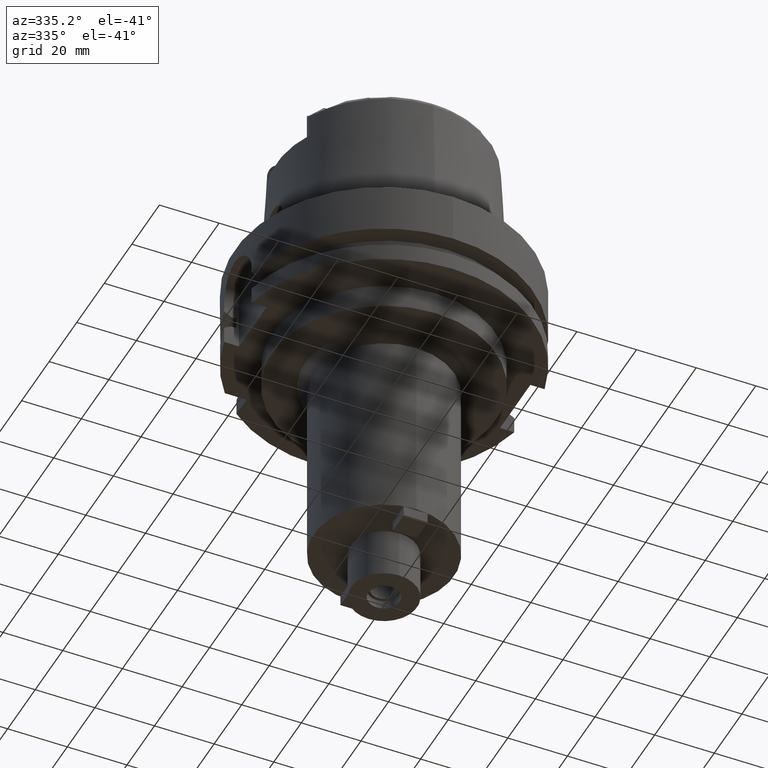
[diagram: clean part render]
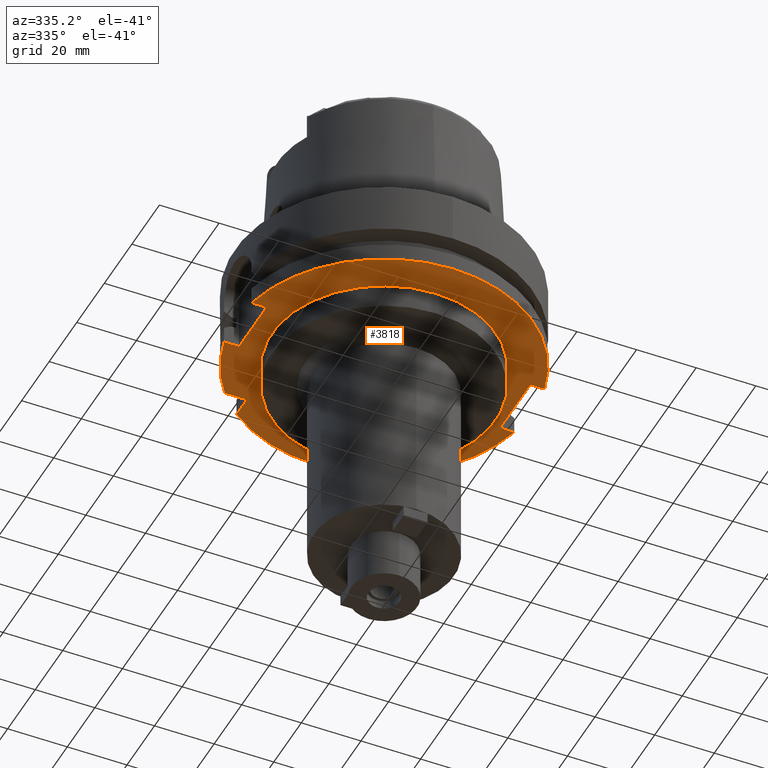
[diagram: same view with one face highlighted and labeled with its STEP entity id]
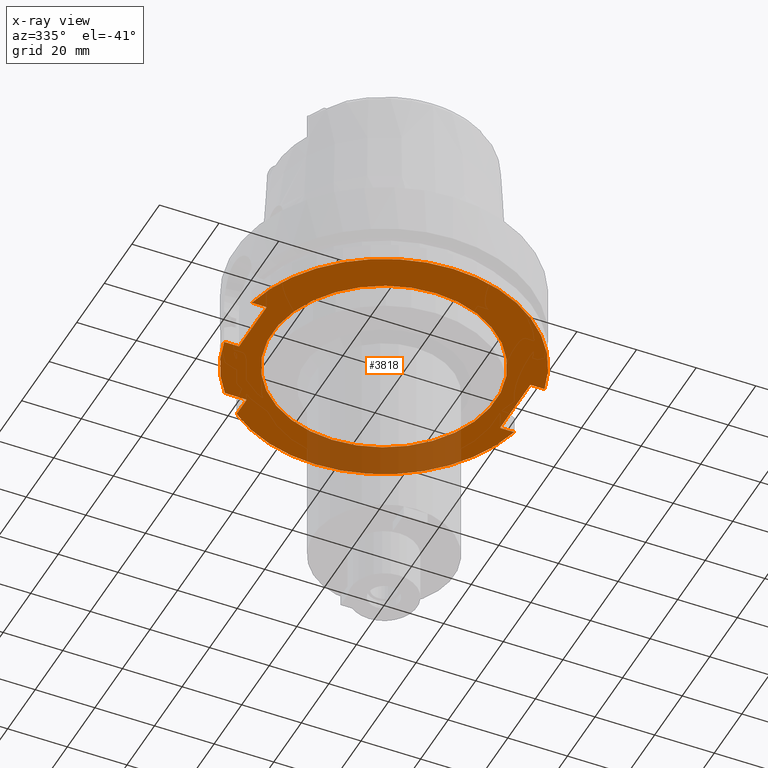
[diagram: x-ray of the same camera — body ghosted, the highlighted face saturated]
A machine part, auxiliary view. The second image highlights one B-rep face of the part: STEP entity #3818.
The next image is the same camera in x-ray: the body ghosted, the highlighted face saturated — about 20% of this face is hidden behind the body in this view.
In plain terms, the highlighted planar face has unit normal (0, 0, 1).
Its self-contained STEP definition (entity closure, byte-faithful):
#1289=DIRECTION('',(-1.E0,-4.798503851106E-14,0.E0));
#1290=VECTOR('',#1289,7.329756630709E0);
#1291=CARTESIAN_POINT('',(-3.15E1,3.15E1,-2.9E1));
#1292=LINE('',#1291,#1290);
#1296=CARTESIAN_POINT('',(0.E0,0.E0,-2.9E1));
#1297=DIRECTION('',(0.E0,0.E0,1.E0));
#1298=DIRECTION('',(-7.765951326142E-1,6.3E-1,0.E0));
#1299=AXIS2_PLACEMENT_3D('',#1296,#1297,#1298);
#1304=DIRECTION('',(-1.E0,-4.627973610177E-14,0.E0));
#1305=VECTOR('',#1304,4.989794855662E0);
#1306=CARTESIAN_POINT('',(-4.4E1,-1.E1,-2.9E1));
#1307=LINE('',#1306,#1305);
#1311=CARTESIAN_POINT('',(0.E0,0.E0,-2.9E1));
#1312=DIRECTION('',(0.E0,0.E0,1.E0));
#1313=DIRECTION('',(-9.797958971133E-1,-2.E-1,0.E0));
#1314=AXIS2_PLACEMENT_3D('',#1311,#1312,#1313);
#1319=CARTESIAN_POINT('',(0.E0,0.E0,-2.9E1));
#1320=DIRECTION('',(0.E0,0.E0,1.E0));
#1321=DIRECTION('',(0.E0,-1.E0,0.E0));
#1322=AXIS2_PLACEMENT_3D('',#1319,#1320,#1321);
#1327=DIRECTION('',(1.E0,-1.785659532940E-14,0.E0));
#1328=VECTOR('',#1327,4.774993593029E0);
#1329=CARTESIAN_POINT('',(4.4E1,1.1E1,-2.9E1));
#1330=LINE('',#1329,#1328);
#1334=CARTESIAN_POINT('',(0.E0,0.E0,-2.9E1));
#1335=DIRECTION('',(0.E0,0.E0,1.E0));
#1336=DIRECTION('',(9.754998718606E-1,2.2E-1,0.E0));
#1337=AXIS2_PLACEMENT_3D('',#1334,#1335,#1336);
#1342=CARTESIAN_POINT('',(0.E0,0.E0,-2.9E1));
#1343=DIRECTION('',(0.E0,0.E0,1.E0));
#1344=DIRECTION('',(0.E0,1.E0,0.E0));
#1345=AXIS2_PLACEMENT_3D('',#1342,#1343,#1344);
#1350=CARTESIAN_POINT('',(0.E0,0.E0,-2.9E1));
#1351=DIRECTION('',(0.E0,0.E0,-1.E0));
#1352=DIRECTION('',(0.E0,-1.E0,0.E0));
#1353=AXIS2_PLACEMENT_3D('',#1350,#1351,#1352);
#1358=CARTESIAN_POINT('',(0.E0,0.E0,-2.9E1));
#1359=DIRECTION('',(0.E0,0.E0,-1.E0));
#1360=DIRECTION('',(0.E0,1.E0,0.E0));
#1361=AXIS2_PLACEMENT_3D('',#1358,#1359,#1360);
#1366=DIRECTION('',(4.798503851106E-14,1.E0,0.E0));
#1367=VECTOR('',#1366,7.329756630709E0);
#1368=CARTESIAN_POINT('',(-3.15E1,3.15E1,-2.9E1));
#1369=LINE('',#1368,#1367);
#1419=DIRECTION('',(0.E0,-1.E0,0.E0));
#1420=VECTOR('',#1419,2.2E1);
#1421=CARTESIAN_POINT('',(4.4E1,1.1E1,-2.9E1));
#1422=LINE('',#1421,#1420);
#1463=DIRECTION('',(1.E0,1.711257052401E-14,0.E0));
#1464=VECTOR('',#1463,4.774993593029E0);
#1465=CARTESIAN_POINT('',(4.4E1,-1.1E1,-2.9E1));
#1466=LINE('',#1465,#1464);
#1505=DIRECTION('',(0.E0,1.E0,0.E0));
#1506=VECTOR('',#1505,2.E1);
#1507=CARTESIAN_POINT('',(-4.4E1,-1.E1,-2.9E1));
#1508=LINE('',#1507,#1506);
#1528=DIRECTION('',(-1.E0,4.627973610177E-14,0.E0));
#1529=VECTOR('',#1528,4.989794855662E0);
#1530=CARTESIAN_POINT('',(-4.4E1,1.E1,-2.9E1));
#1531=LINE('',#1530,#1529);
#2654=CARTESIAN_POINT('',(0.E0,3.75E1,-2.9E1));
#2655=VERTEX_POINT('',#2654);
#2656=CARTESIAN_POINT('',(0.E0,-3.75E1,-2.9E1));
#2657=VERTEX_POINT('',#2656);
#2658=CARTESIAN_POINT('',(-3.15E1,3.15E1,-2.9E1));
#2659=CARTESIAN_POINT('',(-3.15E1,3.882975663071E1,-2.9E1));
#2660=VERTEX_POINT('',#2658);
#2661=VERTEX_POINT('',#2659);
#2662=CARTESIAN_POINT('',(-3.882975663071E1,3.15E1,-2.9E1));
#2663=VERTEX_POINT('',#2662);
#2664=CARTESIAN_POINT('',(-4.898979485566E1,1.E1,-2.9E1));
#2665=VERTEX_POINT('',#2664);
#2666=CARTESIAN_POINT('',(-4.4E1,1.E1,-2.9E1));
#2667=VERTEX_POINT('',#2666);
#2668=CARTESIAN_POINT('',(-4.4E1,-1.E1,-2.9E1));
#2669=VERTEX_POINT('',#2668);
#2670=CARTESIAN_POINT('',(-4.898979485566E1,-1.E1,-2.9E1));
#2671=VERTEX_POINT('',#2670);
#2672=CARTESIAN_POINT('',(-6.821749291192E-14,-5.E1,-2.9E1));
#2673=CARTESIAN_POINT('',(4.877499359303E1,-1.1E1,-2.9E1));
#2674=VERTEX_POINT('',#2672);
#2675=VERTEX_POINT('',#2673);
#2676=CARTESIAN_POINT('',(4.4E1,-1.1E1,-2.9E1));
#2677=VERTEX_POINT('',#2676);
#2678=CARTESIAN_POINT('',(4.4E1,1.1E1,-2.9E1));
#2679=VERTEX_POINT('',#2678);
#2680=CARTESIAN_POINT('',(4.877499359303E1,1.1E1,-2.9E1));
#2681=VERTEX_POINT('',#2680);
#2682=CARTESIAN_POINT('',(-6.019535474874E-14,5.E1,-2.9E1));
#2683=VERTEX_POINT('',#2682);
#3781=CARTESIAN_POINT('',(0.E0,0.E0,-2.9E1));
#3782=DIRECTION('',(0.E0,0.E0,1.E0));
#3783=DIRECTION('',(0.E0,1.E0,0.E0));
#3784=AXIS2_PLACEMENT_3D('',#3781,#3782,#3783);
#3785=PLANE('',#3784);
#3787=ORIENTED_EDGE('',*,*,#3786,.F.);
#3789=ORIENTED_EDGE('',*,*,#3788,.T.);
#3791=ORIENTED_EDGE('',*,*,#3790,.T.);
#3793=ORIENTED_EDGE('',*,*,#3792,.F.);
#3795=ORIENTED_EDGE('',*,*,#3794,.F.);
#3797=ORIENTED_EDGE('',*,*,#3796,.T.);
#3799=ORIENTED_EDGE('',*,*,#3798,.T.);
#3801=ORIENTED_EDGE('',*,*,#3800,.T.);
#3803=ORIENTED_EDGE('',*,*,#3802,.F.);
#3805=ORIENTED_EDGE('',*,*,#3804,.F.);
#3807=ORIENTED_EDGE('',*,*,#3806,.T.);
#3809=ORIENTED_EDGE('',*,*,#3808,.T.);
#3811=ORIENTED_EDGE('',*,*,#3810,.T.);
#3812=EDGE_LOOP('',(#3787,#3789,#3791,#3793,#3795,#3797,#3799,#3801,#3803,#3805,
#3807,#3809,#3811));
#3813=FACE_OUTER_BOUND('',#3812,.F.);
#3814=ORIENTED_EDGE('',*,*,#3774,.T.);
#3815=ORIENTED_EDGE('',*,*,#3763,.T.);
#3816=EDGE_LOOP('',(#3814,#3815));
#3817=FACE_BOUND('',#3816,.F.);
#1300=CIRCLE('',#1299,5.E1);
#1315=CIRCLE('',#1314,5.E1);
#1323=CIRCLE('',#1322,5.E1);
#1338=CIRCLE('',#1337,5.E1);
#1346=CIRCLE('',#1345,5.E1);
#1354=CIRCLE('',#1353,3.75E1);
#1362=CIRCLE('',#1361,3.75E1);
#3763=EDGE_CURVE('',#2655,#2657,#1362,.T.);
#3774=EDGE_CURVE('',#2657,#2655,#1354,.T.);
#3786=EDGE_CURVE('',#2660,#2661,#1369,.T.);
#3788=EDGE_CURVE('',#2660,#2663,#1292,.T.);
#3790=EDGE_CURVE('',#2663,#2665,#1300,.T.);
#3792=EDGE_CURVE('',#2667,#2665,#1531,.T.);
#3794=EDGE_CURVE('',#2669,#2667,#1508,.T.);
#3796=EDGE_CURVE('',#2669,#2671,#1307,.T.);
#3798=EDGE_CURVE('',#2671,#2674,#1315,.T.);
#3800=EDGE_CURVE('',#2674,#2675,#1323,.T.);
#3802=EDGE_CURVE('',#2677,#2675,#1466,.T.);
#3804=EDGE_CURVE('',#2679,#2677,#1422,.T.);
#3806=EDGE_CURVE('',#2679,#2681,#1330,.T.);
#3808=EDGE_CURVE('',#2681,#2683,#1338,.T.);
#3810=EDGE_CURVE('',#2683,#2661,#1346,.T.);
#3818=ADVANCED_FACE('',(#3813,#3817),#3785,.F.);